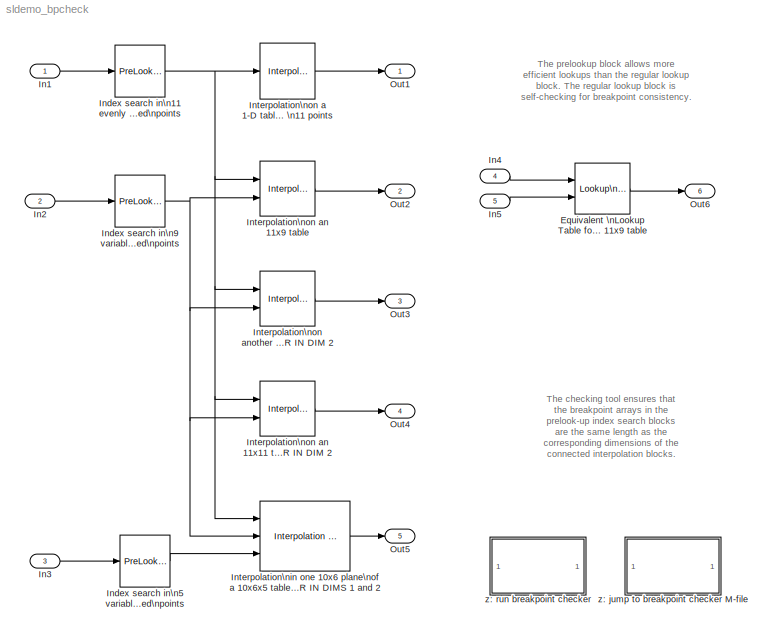
MODEL sldemo_bpcheck
KIND model
BLOCK [Reference] Equivalent \nLookup Table for\nInterpolation\non an 11x9 table  REF=simulink/Lookup\nTables/Lookup\nTable (n-D)
  Ports = [2, 1]
  SourceBlock = simulink/Lookup\nTables/Lookup\nTable (n-D)
  SourceType = LookupNDInterp
  bp1 = [0:10:100]
  bp2 = [ 0.5, 1, 3, 5, 15, 45, 95, 96, 97 ]
  bp3 = [1:3]
  bp4 = [1:3]
  bpcell = { [1:3], [1:3] }
  cacheBpFlag = off
  explicitNumDims = 2
  extrapMethod = Linear
  interpMethod = Linear
  numDimsPopupSelect = 2
  rangeErrorMode = None
  searchMode = Binary Search
  tableData = reshape([1:99], [11,9])
  vectorInputFlag = off
BLOCK [Inport] In1
  IconDisplay = Port number
  LatchInput = off
  Port = 1
BLOCK [Inport] In2
  IconDisplay = Port number
  LatchInput = off
  Port = 2
BLOCK [Inport] In3
  IconDisplay = Port number
  LatchInput = off
  Port = 3
BLOCK [Inport] In4
  IconDisplay = Port number
  LatchInput = off
  Port = 4
BLOCK [Inport] In5
  IconDisplay = Port number
  LatchInput = off
  Port = 5
BLOCK [Reference] Index search in\n11 evenly spaced\npoints  REF=simulink/Lookup\nTables/PreLookup\nIndex Search
  IndexDataType = uint32
  Ports = [1, 1]
  SourceBlock = simulink/Lookup\nTables/PreLookup\nIndex Search
  SourceType = LookupIdxSearch
  bpData = [0:10:100]
  cacheBpFlag = off
  extrapMode = Linear Extrapolation
  outputFlag = off
  rangeErrorMode = None
  searchMode = Evenly Spaced Points
BLOCK [Reference] Index search in\n5 variably spaced\npoints  REF=simulink/Lookup\nTables/PreLookup\nIndex Search
  IndexDataType = uint32
  Ports = [1, 1]
  SourceBlock = simulink/Lookup\nTables/PreLookup\nIndex Search
  SourceType = LookupIdxSearch
  bpData = [-100, 125, 150, 200, 500]
  cacheBpFlag = on
  extrapMode = Clip to Range
  outputFlag = on
  rangeErrorMode = Warning
  searchMode = Linear Search
BLOCK [Reference] Index search in\n9 variably spaced\npoints  REF=simulink/Lookup\nTables/PreLookup\nIndex Search
  IndexDataType = uint32
  Ports = [1, 1]
  SourceBlock = simulink/Lookup\nTables/PreLookup\nIndex Search
  SourceType = LookupIdxSearch
  bpData = [ 0.5, 1, 3, 5, 15, 45, 95, 96, 97 ]
  cacheBpFlag = on
  extrapMode = Linear Extrapolation
  outputFlag = off
  rangeErrorMode = None
  searchMode = Binary Search
BLOCK [Reference] Interpolation\nin one 10x6 plane\nof a 10x6x5 table\nERROR IN DIMS 1 and 2  REF=simulink/Lookup\nTables/Interpolation (n-D)\nusing PreLookup
  NumSelectionDims = 1
  Ports = [3, 1]
  SourceBlock = simulink/Lookup\nTables/Interpolation (n-D)\nusing PreLookup
  SourceType = LookupNDInterpIdx
  explicitNumDims = 2
  extrapMethod = None - Clip
  interpMethod = Linear
  numDimsPopupSelect = 3
  rangeErrorMode = None
  table = reshape([1:300], [10,6,5])
BLOCK [Reference] Interpolation\non a 1-D table with \n11 points  REF=simulink/Lookup\nTables/Interpolation (n-D)\nusing PreLookup
  NumSelectionDims = 0
  Ports = [1, 1]
  SourceBlock = simulink/Lookup\nTables/Interpolation (n-D)\nusing PreLookup
  SourceType = LookupNDInterpIdx
  explicitNumDims = 2
  extrapMethod = None - Clip
  interpMethod = Linear
  numDimsPopupSelect = 1
  rangeErrorMode = None
  table = [1:11].*[1:11]
BLOCK [Reference] Interpolation\non an 11x11 table\nERROR IN DIM 2  REF=simulink/Lookup\nTables/Interpolation (n-D)\nusing PreLookup
  NumSelectionDims = 0
  Ports = [2, 1]
  SourceBlock = simulink/Lookup\nTables/Interpolation (n-D)\nusing PreLookup
  SourceType = LookupNDInterpIdx
  explicitNumDims = 2
  extrapMethod = Linear
  interpMethod = Linear
  numDimsPopupSelect = 2
  rangeErrorMode = None
  table = sqrt([0:10]'*[0:10])
BLOCK [Reference] Interpolation\non an 11x9 table  REF=simulink/Lookup\nTables/Interpolation (n-D)\nusing PreLookup
  NumSelectionDims = 0
  Ports = [2, 1]
  SourceBlock = simulink/Lookup\nTables/Interpolation (n-D)\nusing PreLookup
  SourceType = LookupNDInterpIdx
  explicitNumDims = 2
  extrapMethod = None - Clip
  interpMethod = Linear
  numDimsPopupSelect = 2
  rangeErrorMode = None
  table = reshape([1:99], [11,9])
BLOCK [Reference] Interpolation\non another 11x11 table\nERROR IN DIM 2  REF=simulink/Lookup\nTables/Interpolation (n-D)\nusing PreLookup
  NumSelectionDims = 0
  Ports = [2, 1]
  SourceBlock = simulink/Lookup\nTables/Interpolation (n-D)\nusing PreLookup
  SourceType = LookupNDInterpIdx
  explicitNumDims = 2
  extrapMethod = Linear
  interpMethod = Linear
  numDimsPopupSelect = 2
  rangeErrorMode = None
  table = membrane(1,5,9,9)
BLOCK [Outport] Out1
  BusOutputAsStruct = off
  IconDisplay = Port number
BLOCK [Outport] Out2
  BusOutputAsStruct = off
  IconDisplay = Port number
  Port = 2
BLOCK [Outport] Out3
  BusOutputAsStruct = off
  IconDisplay = Port number
  Port = 3
BLOCK [Outport] Out4
  BusOutputAsStruct = off
  IconDisplay = Port number
  Port = 4
BLOCK [Outport] Out5
  BusOutputAsStruct = off
  IconDisplay = Port number
  Port = 5
BLOCK [Outport] Out6
  BusOutputAsStruct = off
  IconDisplay = Port number
  Port = 6
BLOCK [SubSystem] z: jump to breakpoint checker M-file
  MaskDisplay = disp('View\\nBreakpoint\\nChecker')
  MaskIconFrame = on
  MaskIconOpaque = on
  MaskIconRotate = none
  MaskIconUnits = autoscale
  MaskType = Demo
  MinAlgLoopOccurrences = off
  OpenFcn = edit slcheckprelookups.m
  Ports = []
  PropExecContextAcrossSSBoundary = on
  RTWSystemCode = Auto
  TreatAsAtomicUnit = off
BLOCK [SubSystem] z: run breakpoint checker
  MaskDisplay = disp('Run\\nBreakpoint\\nChecker')
  MaskIconFrame = on
  MaskIconOpaque = on
  MaskIconRotate = none
  MaskIconUnits = autoscale
  MaskType = Demo
  MinAlgLoopOccurrences = off
  OpenFcn = evalin('base','preblks = slcheckprelookups(''sldemo_bpcheck''), commandwindow')
  Ports = []
  PropExecContextAcrossSSBoundary = on
  RTWSystemCode = Auto
  TreatAsAtomicUnit = off
ANNOTATION (root): The checking tool ensures that\nthe breakpoint arrays in the\nprelook-up index search blocks\nare the same length as the \ncorresponding dimensions of the\nconnected interpolation blocks.\n\nIn this model, the breakpoint arrays\nhave deliberately been created with\n incorrect lengths to illustrate the \nbreakpoint checking tool's analysis.
ANNOTATION (root): The prelookup block allows more\nefficient lookups than the regular lookup\nblock. The regular lookup block is\nself-checking for breakpoint consistency.
ANNOTATION z: jump to breakpoint checker M-file: This block intentionally has no contents.
ANNOTATION z: run breakpoint checker: This block intentionally has no contents.
LINE Equivalent \nLookup Table for\nInterpolation\non an 11x9 table:1 -> Out6:1
LINE In1:1 -> Index search in\n11 evenly spaced\npoints:1
LINE In2:1 -> Index search in\n9 variably spaced\npoints:1
LINE In3:1 -> Index search in\n5 variably spaced\npoints:1
LINE In4:1 -> Equivalent \nLookup Table for\nInterpolation\non an 11x9 table:1
LINE In5:1 -> Equivalent \nLookup Table for\nInterpolation\non an 11x9 table:2
NET Index search in\n11 evenly spaced\npoints:1 -> Interpolation\nin one 10x6 plane\nof a 10x6x5 table\nERROR IN DIMS 1 and 2:1, Interpolation\non a 1-D table with \n11 points:1, Interpolation\non an 11x11 table\nERROR IN DIM 2:1, Interpolation\non an 11x9 table:1, Interpolation\non another 11x11 table\nERROR IN DIM 2:1
LINE Index search in\n5 variably spaced\npoints:1 -> Interpolation\nin one 10x6 plane\nof a 10x6x5 table\nERROR IN DIMS 1 and 2:3
NET Index search in\n9 variably spaced\npoints:1 -> Interpolation\nin one 10x6 plane\nof a 10x6x5 table\nERROR IN DIMS 1 and 2:2, Interpolation\non an 11x11 table\nERROR IN DIM 2:2, Interpolation\non an 11x9 table:2, Interpolation\non another 11x11 table\nERROR IN DIM 2:2
LINE Interpolation\nin one 10x6 plane\nof a 10x6x5 table\nERROR IN DIMS 1 and 2:1 -> Out5:1
LINE Interpolation\non a 1-D table with \n11 points:1 -> Out1:1
LINE Interpolation\non an 11x11 table\nERROR IN DIM 2:1 -> Out4:1
LINE Interpolation\non an 11x9 table:1 -> Out2:1
LINE Interpolation\non another 11x11 table\nERROR IN DIM 2:1 -> Out3:1
note: NET lines group one-source signal fan-out (src -> all destinations, sorted); 1:1 wires keep LINE
